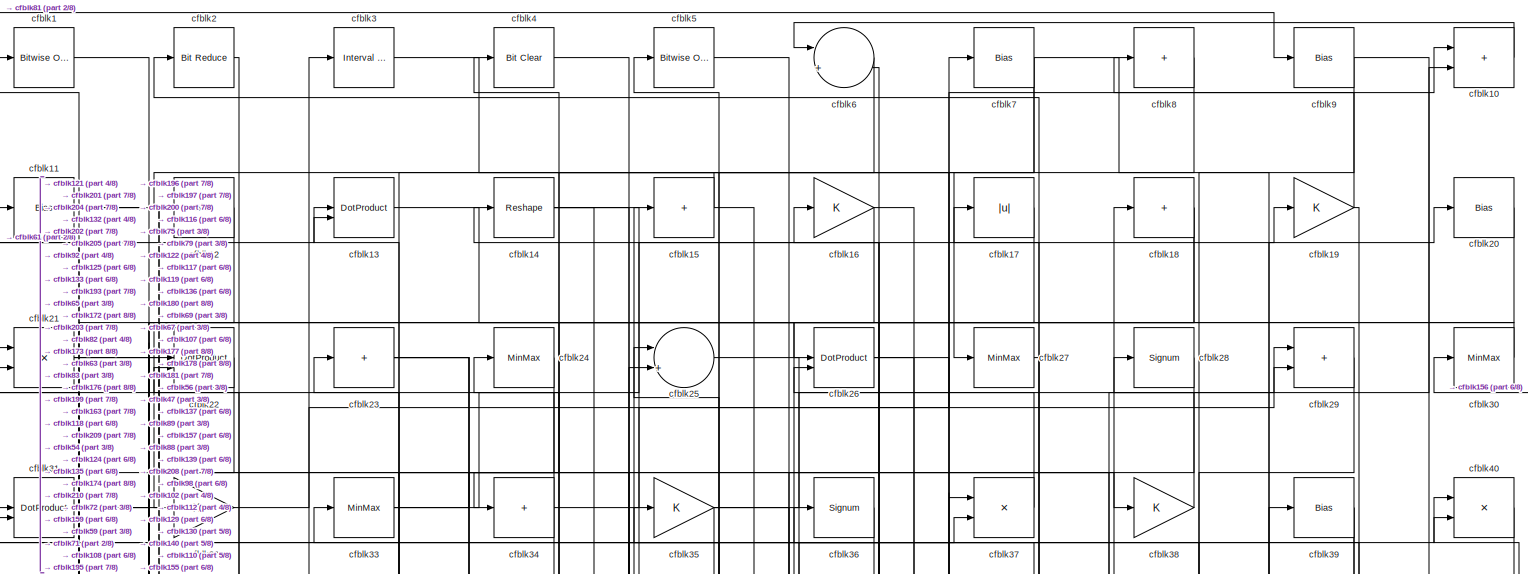
[diagram: root canvas - part 1/8, full width, top band]
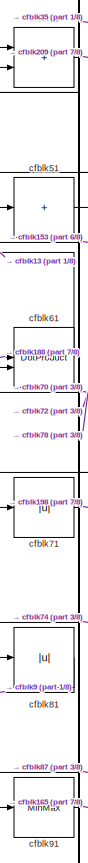
[diagram: root canvas - part 2/8, top left region]
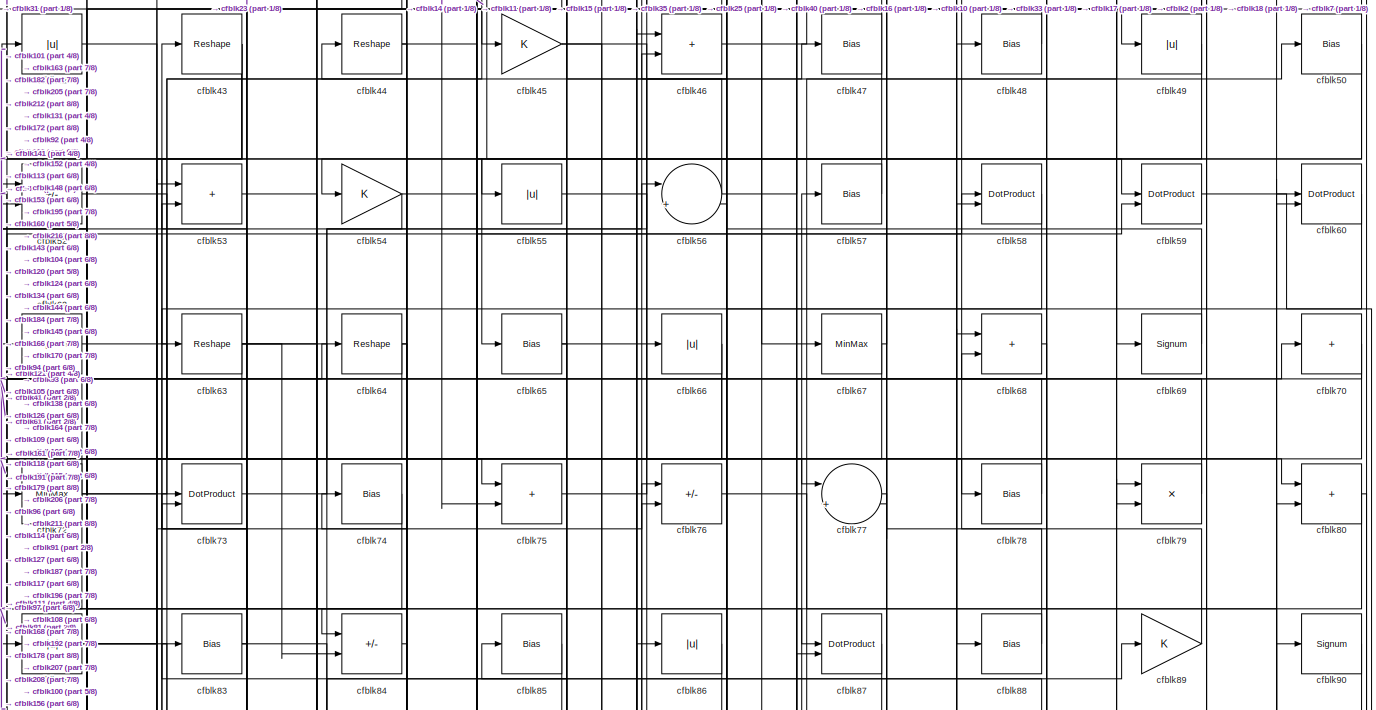
[diagram: root canvas - part 3/8, full width, top band]
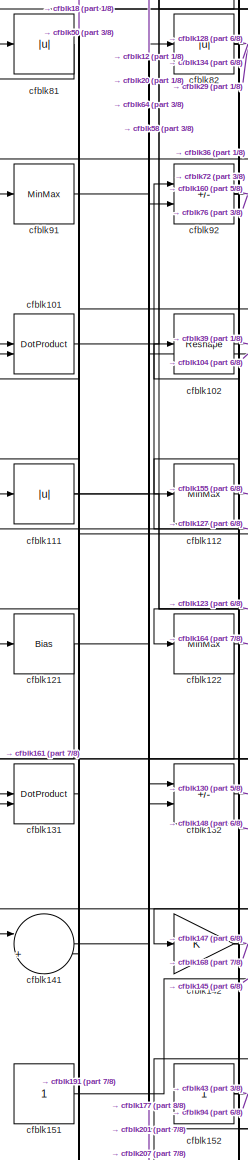
[diagram: root canvas - part 4/8, middle left region]
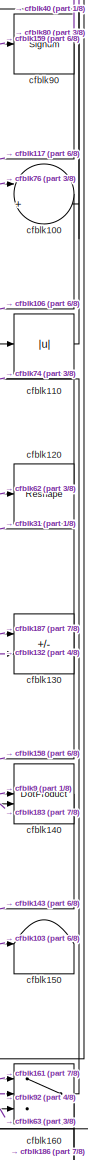
[diagram: root canvas - part 5/8, middle right region]
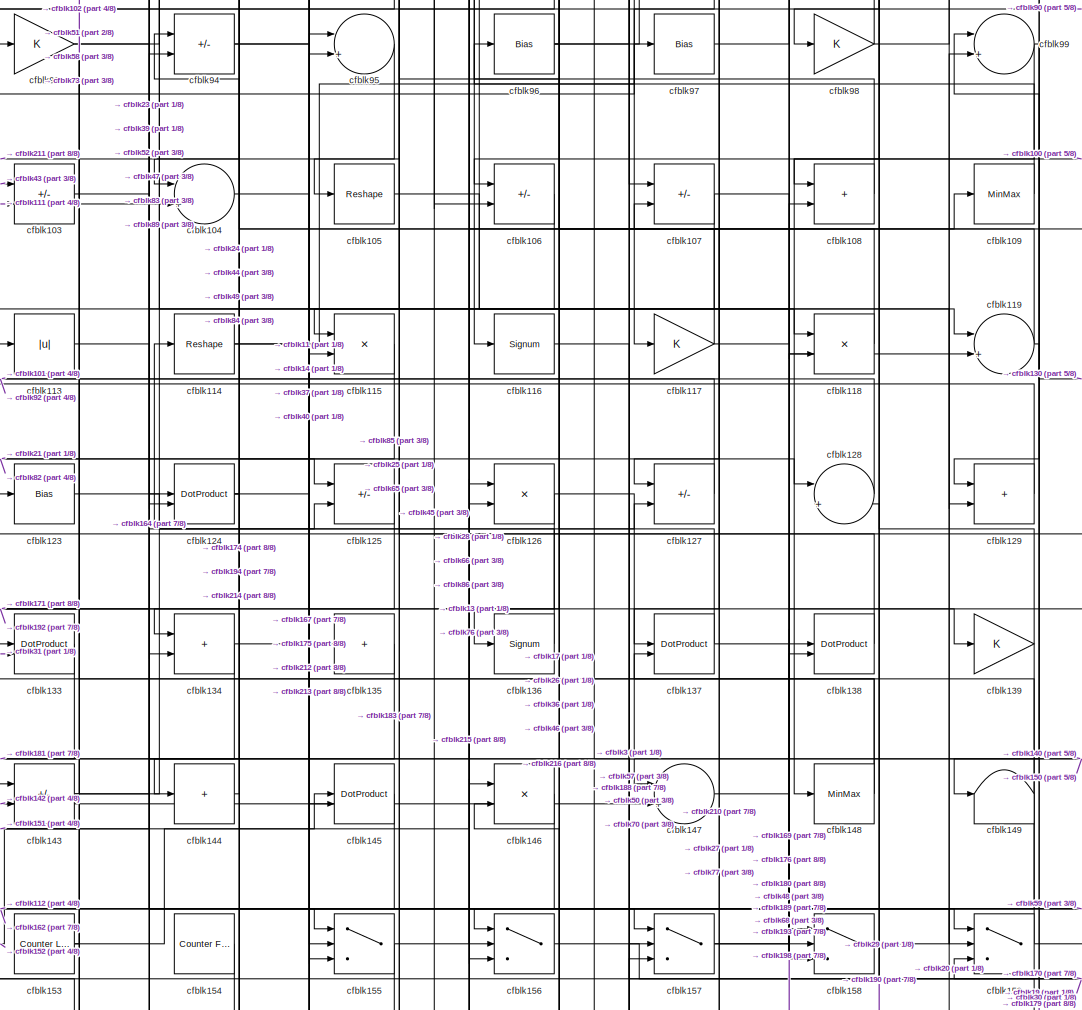
[diagram: root canvas - part 6/8, central region]
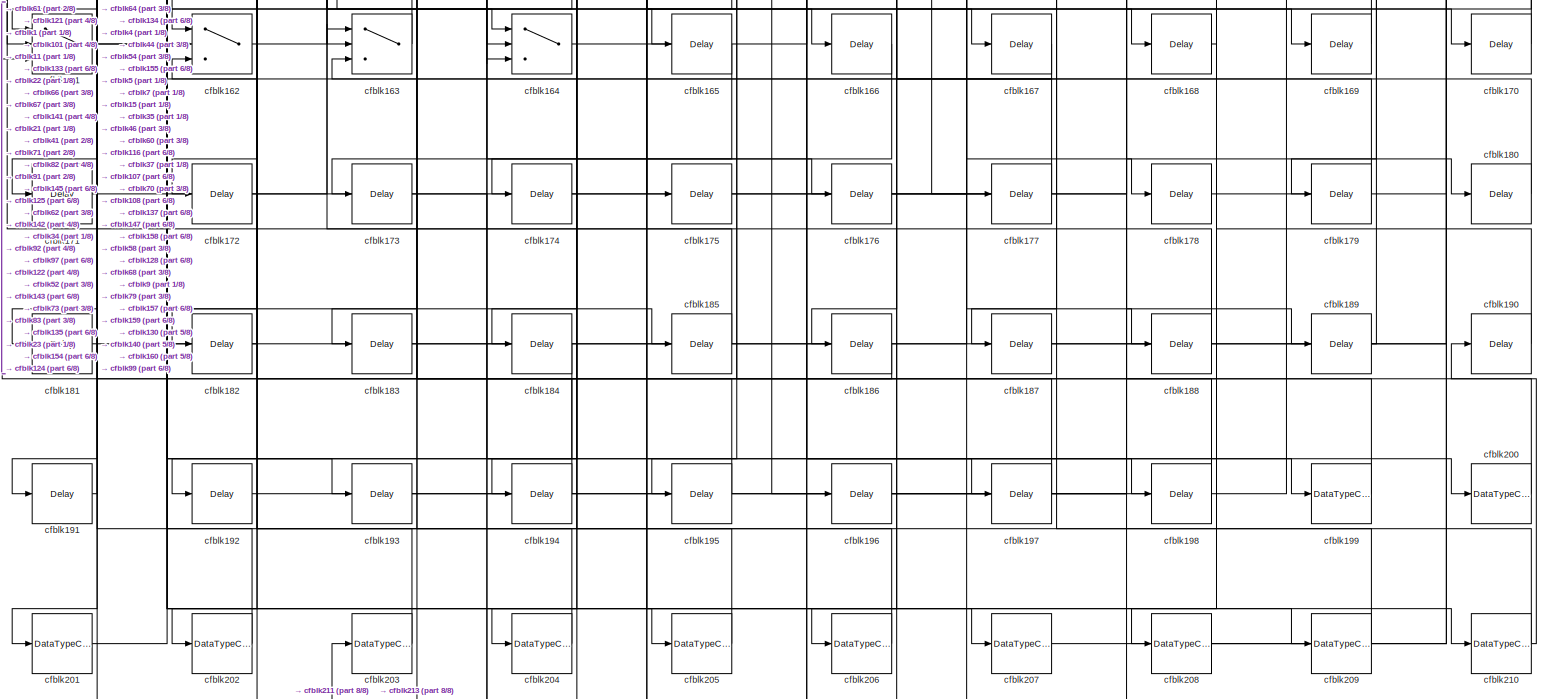
[diagram: root canvas - part 7/8, full width, bottom band]
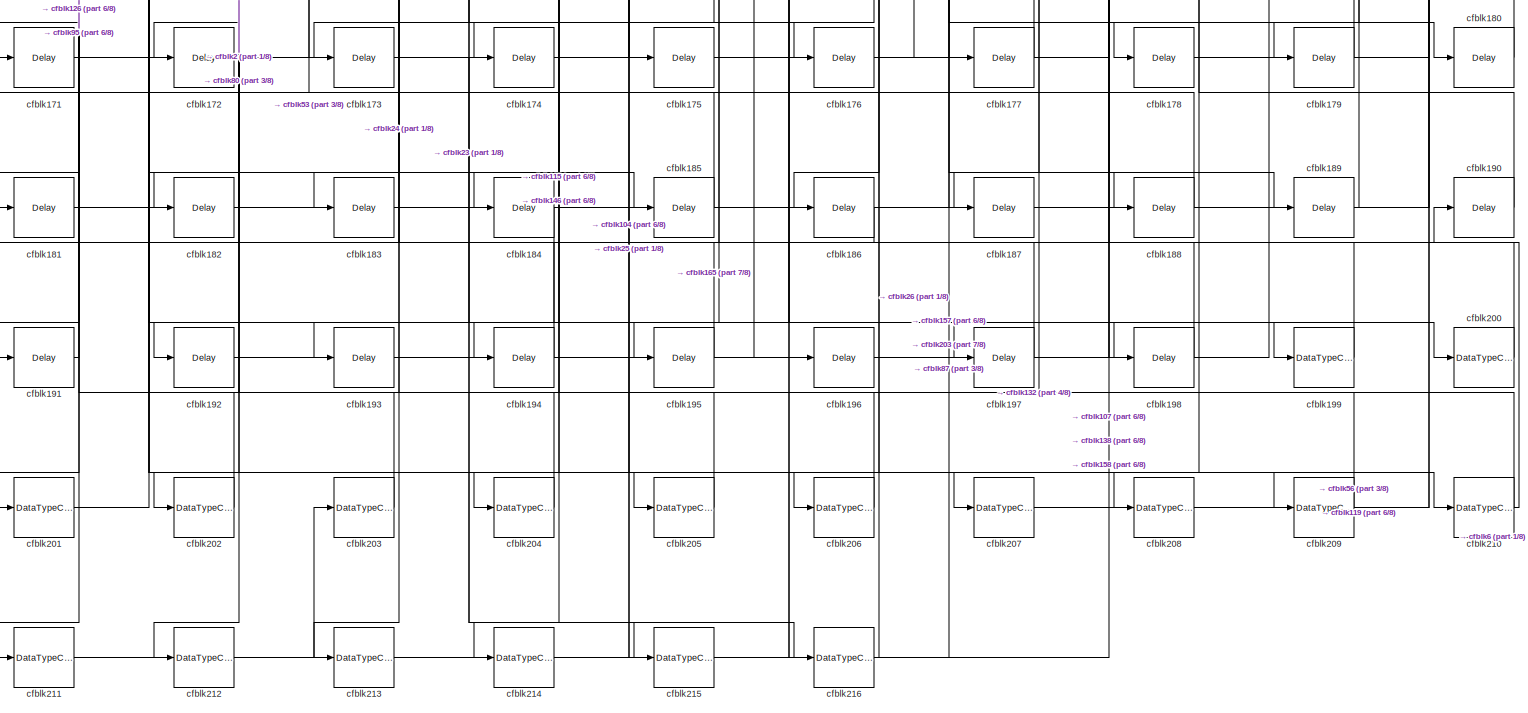
[diagram: root canvas - part 8/8, full width, bottom band]
MODEL slx_15d70a15c5ca
KIND model
CONFIG AbsTol = auto
CONFIG EnableMultiTasking = off
CONFIG FixedStep = auto
CONFIG MaxStep = auto
CONFIG MinStep = auto
CONFIG RelTol = 1e-3
CONFIG SampleTimeConstraint = Unconstrained
CONFIG SolverName = VariableStepAuto
CONFIG StartTime = 0.0
CONFIG StopTime = 10.0
BLOCK [Reference] cfblk1  REF=simulink/Logic and Bit
Operations/Bitwise
Operator
  LibrarySourceBlock = hdlsllib/Logic and Bit\nOperations/Bitwise\nOperator
  SourceBlock = simulink/Logic and Bit\nOperations/Bitwise\nOperator
  SourceType = Bitwise Operator
BLOCK [Sum] cfblk10
  IconShape = rectangular
BLOCK [Sum] cfblk100
  Inputs = |++
BLOCK [DotProduct] cfblk101
  OutDataTypeStr = Inherit: Inherit via internal rule
BLOCK [Reshape] cfblk102
BLOCK [Sum] cfblk103
  IconShape = rectangular
  Inputs = +-
BLOCK [Sum] cfblk104
  Inputs = |++
BLOCK [Reshape] cfblk105
BLOCK [Sum] cfblk106
  IconShape = rectangular
  Inputs = +-
BLOCK [Sum] cfblk107
  IconShape = rectangular
  Inputs = +-
BLOCK [Sum] cfblk108
  IconShape = rectangular
BLOCK [MinMax] cfblk109
BLOCK [Bias] cfblk11
  Bias = 0.0
  SaturateOnIntegerOverflow = off
BLOCK [Abs] cfblk110
  SaturateOnIntegerOverflow = off
BLOCK [Abs] cfblk111
  SaturateOnIntegerOverflow = off
BLOCK [MinMax] cfblk112
BLOCK [Abs] cfblk113
  SaturateOnIntegerOverflow = off
BLOCK [Reshape] cfblk114
BLOCK [Product] cfblk115
  Inputs = */
  RndMeth = Zero
  SaturateOnIntegerOverflow = on
BLOCK [Signum] cfblk116
BLOCK [Gain] cfblk117
BLOCK [Product] cfblk118
  Inputs = */
  RndMeth = Zero
  SaturateOnIntegerOverflow = on
BLOCK [Sum] cfblk119
  Inputs = |++
BLOCK [Bias] cfblk12
  Bias = 0.0
  SaturateOnIntegerOverflow = off
BLOCK [Reshape] cfblk120
BLOCK [Bias] cfblk121
  Bias = 0.0
  SaturateOnIntegerOverflow = off
BLOCK [MinMax] cfblk122
BLOCK [Bias] cfblk123
  Bias = 0.0
  SaturateOnIntegerOverflow = off
BLOCK [DotProduct] cfblk124
  OutDataTypeStr = Inherit: Inherit via internal rule
BLOCK [Sum] cfblk125
  IconShape = rectangular
  Inputs = +-
BLOCK [Product] cfblk126
  Inputs = */
  RndMeth = Zero
  SaturateOnIntegerOverflow = on
BLOCK [Sum] cfblk127
  IconShape = rectangular
  Inputs = +-
BLOCK [Sum] cfblk128
  Inputs = |++
BLOCK [Sum] cfblk129
  IconShape = rectangular
BLOCK [DotProduct] cfblk13
  OutDataTypeStr = Inherit: Inherit via internal rule
BLOCK [Sum] cfblk130
  IconShape = rectangular
  Inputs = +-
BLOCK [DotProduct] cfblk131
  OutDataTypeStr = Inherit: Inherit via internal rule
BLOCK [Sum] cfblk132
  IconShape = rectangular
  Inputs = +-
BLOCK [DotProduct] cfblk133
  OutDataTypeStr = Inherit: Inherit via internal rule
BLOCK [Sum] cfblk134
  IconShape = rectangular
BLOCK [Sum] cfblk135
  IconShape = rectangular
  Inputs = +
BLOCK [Signum] cfblk136
BLOCK [DotProduct] cfblk137
  OutDataTypeStr = Inherit: Inherit via internal rule
BLOCK [DotProduct] cfblk138
  OutDataTypeStr = Inherit: Inherit via internal rule
BLOCK [Gain] cfblk139
BLOCK [Reshape] cfblk14
BLOCK [DotProduct] cfblk140
  OutDataTypeStr = Inherit: Inherit via internal rule
BLOCK [Sum] cfblk141
  Inputs = |++
BLOCK [Gain] cfblk142
BLOCK [Sum] cfblk143
  IconShape = rectangular
  Inputs = +-
BLOCK [Sum] cfblk144
  IconShape = rectangular
  Inputs = +
BLOCK [DotProduct] cfblk145
  OutDataTypeStr = Inherit: Inherit via internal rule
BLOCK [Product] cfblk146
  Inputs = */
  RndMeth = Zero
  SaturateOnIntegerOverflow = on
BLOCK [Sum] cfblk147
  Inputs = |++
BLOCK [MinMax] cfblk148
BLOCK [Terminator] cfblk149
BLOCK [Sum] cfblk15
  IconShape = rectangular
  Inputs = +
BLOCK [Terminator] cfblk150
BLOCK [Constant] cfblk151
  SampleTime = -1
BLOCK [Constant] cfblk152
  SampleTime = -1
BLOCK [Reference] cfblk153  REF=hdlsllib/Sources/Counter
Limited
  SourceBlock = hdlsllib/Sources/Counter\nLimited
  SourceType = Counter Limited
BLOCK [Reference] cfblk154  REF=hdlsllib/Sources/Counter
Free-Running
  SourceBlock = hdlsllib/Sources/Counter\nFree-Running
  SourceType = Counter Free-Running
BLOCK [Switch] cfblk155
  InputSameDT = off
  SaturateOnIntegerOverflow = off
BLOCK [Switch] cfblk156
  InputSameDT = off
  SaturateOnIntegerOverflow = off
BLOCK [Switch] cfblk157
  InputSameDT = off
  SaturateOnIntegerOverflow = off
BLOCK [Switch] cfblk158
  InputSameDT = off
  SaturateOnIntegerOverflow = off
BLOCK [Switch] cfblk159
  InputSameDT = off
  SaturateOnIntegerOverflow = off
BLOCK [Gain] cfblk16
BLOCK [Switch] cfblk160
  InputSameDT = off
  SaturateOnIntegerOverflow = off
BLOCK [Switch] cfblk161
  InputSameDT = off
  SaturateOnIntegerOverflow = off
BLOCK [Switch] cfblk162
  InputSameDT = off
  SaturateOnIntegerOverflow = off
BLOCK [Switch] cfblk163
  InputSameDT = off
  SaturateOnIntegerOverflow = off
BLOCK [Switch] cfblk164
  InputSameDT = off
  SaturateOnIntegerOverflow = off
BLOCK [Delay] cfblk165
  InputPortMap = u0
  SampleTime = 1
BLOCK [Delay] cfblk166
  InputPortMap = u0
  SampleTime = 1
BLOCK [Delay] cfblk167
  InputPortMap = u0
  SampleTime = 1
BLOCK [Delay] cfblk168
  InputPortMap = u0
  SampleTime = 1
BLOCK [Delay] cfblk169
  InputPortMap = u0
  SampleTime = 1
BLOCK [Abs] cfblk17
  SaturateOnIntegerOverflow = off
BLOCK [Delay] cfblk170
  InputPortMap = u0
  SampleTime = 1
BLOCK [Delay] cfblk171
  InputPortMap = u0
  SampleTime = 1
BLOCK [Delay] cfblk172
  InputPortMap = u0
  SampleTime = 1
BLOCK [Delay] cfblk173
  InputPortMap = u0
  SampleTime = 1
BLOCK [Delay] cfblk174
  InputPortMap = u0
  SampleTime = 1
BLOCK [Delay] cfblk175
  InputPortMap = u0
  SampleTime = 1
BLOCK [Delay] cfblk176
  InputPortMap = u0
  SampleTime = 1
BLOCK [Delay] cfblk177
  InputPortMap = u0
  SampleTime = 1
BLOCK [Delay] cfblk178
  InputPortMap = u0
  SampleTime = 1
BLOCK [Delay] cfblk179
  InputPortMap = u0
  SampleTime = 1
BLOCK [Sum] cfblk18
  IconShape = rectangular
  Inputs = +
BLOCK [Delay] cfblk180
  InputPortMap = u0
  SampleTime = 1
BLOCK [Delay] cfblk181
  InputPortMap = u0
  SampleTime = 1
BLOCK [Delay] cfblk182
  InputPortMap = u0
  SampleTime = 1
BLOCK [Delay] cfblk183
  InputPortMap = u0
  SampleTime = 1
BLOCK [Delay] cfblk184
  InputPortMap = u0
  SampleTime = 1
BLOCK [Delay] cfblk185
  InputPortMap = u0
  SampleTime = 1
BLOCK [Delay] cfblk186
  InputPortMap = u0
  SampleTime = 1
BLOCK [Delay] cfblk187
  InputPortMap = u0
  SampleTime = 1
BLOCK [Delay] cfblk188
  InputPortMap = u0
  SampleTime = 1
BLOCK [Delay] cfblk189
  InputPortMap = u0
  SampleTime = 1
BLOCK [Gain] cfblk19
BLOCK [Delay] cfblk190
  InputPortMap = u0
  SampleTime = 1
BLOCK [Delay] cfblk191
  InputPortMap = u0
  SampleTime = 1
BLOCK [Delay] cfblk192
  InputPortMap = u0
  SampleTime = 1
BLOCK [Delay] cfblk193
  InputPortMap = u0
  SampleTime = 1
BLOCK [Delay] cfblk194
  InputPortMap = u0
  SampleTime = 1
BLOCK [Delay] cfblk195
  InputPortMap = u0
  SampleTime = 1
BLOCK [Delay] cfblk196
  InputPortMap = u0
  SampleTime = 1
BLOCK [Delay] cfblk197
  InputPortMap = u0
  SampleTime = 1
BLOCK [Delay] cfblk198
  InputPortMap = u0
  SampleTime = 1
BLOCK [DataTypeConversion] cfblk199
  OutDataTypeStr = boolean
  RndMeth = Floor
  SaturateOnIntegerOverflow = off
BLOCK [Reference] cfblk2  REF=hdlsllib/Logic and Bit
Operations/Bit Reduce
  SourceBlock = hdlsllib/Logic and Bit\nOperations/Bit Reduce
  SourceType = Bit Reduce
BLOCK [Bias] cfblk20
  Bias = 0.0
  SaturateOnIntegerOverflow = off
BLOCK [DataTypeConversion] cfblk200
  OutDataTypeStr = uint8
  RndMeth = Floor
  SaturateOnIntegerOverflow = off
BLOCK [DataTypeConversion] cfblk201
  OutDataTypeStr = uint8
  RndMeth = Floor
  SaturateOnIntegerOverflow = off
BLOCK [DataTypeConversion] cfblk202
  OutDataTypeStr = uint8
  RndMeth = Floor
  SaturateOnIntegerOverflow = off
BLOCK [DataTypeConversion] cfblk203
  OutDataTypeStr = uint8
  RndMeth = Floor
  SaturateOnIntegerOverflow = off
BLOCK [DataTypeConversion] cfblk204
  OutDataTypeStr = boolean
  RndMeth = Floor
  SaturateOnIntegerOverflow = off
BLOCK [DataTypeConversion] cfblk205
  OutDataTypeStr = uint8
  RndMeth = Floor
  SaturateOnIntegerOverflow = off
BLOCK [DataTypeConversion] cfblk206
  OutDataTypeStr = uint8
  RndMeth = Floor
  SaturateOnIntegerOverflow = off
BLOCK [DataTypeConversion] cfblk207
  OutDataTypeStr = uint8
  RndMeth = Floor
  SaturateOnIntegerOverflow = off
BLOCK [DataTypeConversion] cfblk208
  OutDataTypeStr = uint8
  RndMeth = Floor
  SaturateOnIntegerOverflow = off
BLOCK [DataTypeConversion] cfblk209
  OutDataTypeStr = boolean
  RndMeth = Floor
  SaturateOnIntegerOverflow = off
BLOCK [Product] cfblk21
  Inputs = */
  RndMeth = Zero
  SaturateOnIntegerOverflow = on
BLOCK [DataTypeConversion] cfblk210
  RndMeth = Floor
  SaturateOnIntegerOverflow = off
BLOCK [DataTypeConversion] cfblk211
  RndMeth = Floor
  SaturateOnIntegerOverflow = off
BLOCK [DataTypeConversion] cfblk212
  OutDataTypeStr = uint8
  RndMeth = Floor
  SaturateOnIntegerOverflow = off
BLOCK [DataTypeConversion] cfblk213
  OutDataTypeStr = uint8
  RndMeth = Floor
  SaturateOnIntegerOverflow = off
BLOCK [DataTypeConversion] cfblk214
  RndMeth = Floor
  SaturateOnIntegerOverflow = off
BLOCK [DataTypeConversion] cfblk215
  OutDataTypeStr = uint8
  RndMeth = Floor
  SaturateOnIntegerOverflow = off
BLOCK [DataTypeConversion] cfblk216
  OutDataTypeStr = uint8
  RndMeth = Floor
  SaturateOnIntegerOverflow = off
BLOCK [DotProduct] cfblk22
  OutDataTypeStr = Inherit: Inherit via internal rule
BLOCK [Sum] cfblk23
  IconShape = rectangular
  Inputs = +
BLOCK [MinMax] cfblk24
BLOCK [Sum] cfblk25
  Inputs = |++
BLOCK [DotProduct] cfblk26
  OutDataTypeStr = Inherit: Inherit via internal rule
BLOCK [MinMax] cfblk27
BLOCK [Signum] cfblk28
BLOCK [Sum] cfblk29
  IconShape = rectangular
BLOCK [Reference] cfblk3  REF=hdlsllib/Logic and Bit
Operations/Interval Test
  SourceBlock = hdlsllib/Logic and Bit\nOperations/Interval Test
  SourceType = Interval Test
BLOCK [MinMax] cfblk30
BLOCK [DotProduct] cfblk31
  OutDataTypeStr = Inherit: Inherit via internal rule
BLOCK [Gain] cfblk32
BLOCK [MinMax] cfblk33
BLOCK [Sum] cfblk34
  IconShape = rectangular
  Inputs = +
BLOCK [Gain] cfblk35
BLOCK [Signum] cfblk36
BLOCK [Product] cfblk37
  Inputs = */
  RndMeth = Zero
  SaturateOnIntegerOverflow = on
BLOCK [Gain] cfblk38
BLOCK [Bias] cfblk39
  Bias = 0.0
  SaturateOnIntegerOverflow = off
BLOCK [Reference] cfblk4  REF=simulink/Logic and Bit
Operations/Bit Clear
  LibrarySourceBlock = hdlsllib/Logic and Bit\nOperations/Bit Clear
  SourceBlock = simulink/Logic and Bit\nOperations/Bit Clear
  SourceType = Bit Clear
BLOCK [Product] cfblk40
  Inputs = */
  RndMeth = Zero
  SaturateOnIntegerOverflow = on
BLOCK [Sum] cfblk41
  IconShape = rectangular
BLOCK [Abs] cfblk42
  SaturateOnIntegerOverflow = off
BLOCK [Reshape] cfblk43
BLOCK [Reshape] cfblk44
BLOCK [Gain] cfblk45
BLOCK [Sum] cfblk46
  IconShape = rectangular
BLOCK [Bias] cfblk47
  Bias = 0.0
  SaturateOnIntegerOverflow = off
BLOCK [Bias] cfblk48
  Bias = 0.0
  SaturateOnIntegerOverflow = off
BLOCK [Abs] cfblk49
  SaturateOnIntegerOverflow = off
BLOCK [Reference] cfblk5  REF=simulink/Logic and Bit
Operations/Bitwise
Operator
  LibrarySourceBlock = hdlsllib/Logic and Bit\nOperations/Bitwise\nOperator
  SourceBlock = simulink/Logic and Bit\nOperations/Bitwise\nOperator
  SourceType = Bitwise Operator
BLOCK [Bias] cfblk50
  Bias = 0.0
  SaturateOnIntegerOverflow = off
BLOCK [Sum] cfblk51
  IconShape = rectangular
  Inputs = +
BLOCK [Sum] cfblk52
  IconShape = rectangular
  Inputs = +-
BLOCK [Sum] cfblk53
  IconShape = rectangular
BLOCK [Gain] cfblk54
BLOCK [Abs] cfblk55
  SaturateOnIntegerOverflow = off
BLOCK [Sum] cfblk56
  Inputs = |++
BLOCK [Bias] cfblk57
  Bias = 0.0
  SaturateOnIntegerOverflow = off
BLOCK [DotProduct] cfblk58
  OutDataTypeStr = Inherit: Inherit via internal rule
BLOCK [DotProduct] cfblk59
  OutDataTypeStr = Inherit: Inherit via internal rule
BLOCK [Sum] cfblk6
  Inputs = |++
BLOCK [DotProduct] cfblk60
  OutDataTypeStr = Inherit: Inherit via internal rule
BLOCK [DotProduct] cfblk61
  OutDataTypeStr = Inherit: Inherit via internal rule
BLOCK [Signum] cfblk62
BLOCK [Reshape] cfblk63
BLOCK [Reshape] cfblk64
BLOCK [Bias] cfblk65
  Bias = 0.0
  SaturateOnIntegerOverflow = off
BLOCK [Abs] cfblk66
  SaturateOnIntegerOverflow = off
BLOCK [MinMax] cfblk67
BLOCK [Sum] cfblk68
  IconShape = rectangular
BLOCK [Signum] cfblk69
BLOCK [Bias] cfblk7
  Bias = 0.0
  SaturateOnIntegerOverflow = off
BLOCK [Sum] cfblk70
  IconShape = rectangular
  Inputs = +
BLOCK [Abs] cfblk71
  SaturateOnIntegerOverflow = off
BLOCK [MinMax] cfblk72
BLOCK [DotProduct] cfblk73
  OutDataTypeStr = Inherit: Inherit via internal rule
BLOCK [Bias] cfblk74
  Bias = 0.0
  SaturateOnIntegerOverflow = off
BLOCK [Sum] cfblk75
  IconShape = rectangular
BLOCK [Sum] cfblk76
  IconShape = rectangular
  Inputs = +-
BLOCK [Sum] cfblk77
  Inputs = |++
BLOCK [Bias] cfblk78
  Bias = 0.0
  SaturateOnIntegerOverflow = off
BLOCK [Product] cfblk79
  Inputs = */
  RndMeth = Zero
  SaturateOnIntegerOverflow = on
BLOCK [Sum] cfblk8
  IconShape = rectangular
  Inputs = +
BLOCK [Sum] cfblk80
  IconShape = rectangular
BLOCK [Abs] cfblk81
  SaturateOnIntegerOverflow = off
BLOCK [Abs] cfblk82
  SaturateOnIntegerOverflow = off
BLOCK [Bias] cfblk83
  Bias = 0.0
  SaturateOnIntegerOverflow = off
BLOCK [Sum] cfblk84
  IconShape = rectangular
  Inputs = +-
BLOCK [Bias] cfblk85
  Bias = 0.0
  SaturateOnIntegerOverflow = off
BLOCK [Abs] cfblk86
  SaturateOnIntegerOverflow = off
BLOCK [DotProduct] cfblk87
  OutDataTypeStr = Inherit: Inherit via internal rule
BLOCK [Bias] cfblk88
  Bias = 0.0
  SaturateOnIntegerOverflow = off
BLOCK [Gain] cfblk89
BLOCK [Bias] cfblk9
  Bias = 0.0
  SaturateOnIntegerOverflow = off
BLOCK [Signum] cfblk90
BLOCK [MinMax] cfblk91
BLOCK [Sum] cfblk92
  IconShape = rectangular
  Inputs = +-
BLOCK [Gain] cfblk93
BLOCK [Sum] cfblk94
  IconShape = rectangular
  Inputs = +-
BLOCK [Sum] cfblk95
  Inputs = |++
BLOCK [Bias] cfblk96
  Bias = 0.0
  SaturateOnIntegerOverflow = off
BLOCK [Bias] cfblk97
  Bias = 0.0
  SaturateOnIntegerOverflow = off
BLOCK [Gain] cfblk98
BLOCK [Sum] cfblk99
  Inputs = |++
LINE cfblk100:1 -> cfblk106:1
LINE cfblk101:1 -> cfblk58:1
LINE cfblk102:1 -> cfblk39:1
LINE cfblk103:1 -> cfblk150:1
LINE cfblk104:1 -> cfblk175:1
LINE cfblk105:1 -> cfblk129:2
LINE cfblk106:1 -> cfblk115:2
NET cfblk107:1 -> cfblk133:1, cfblk180:1
LINE cfblk108:1 -> cfblk25:1
LINE cfblk109:1 -> cfblk76:1
LINE cfblk10:1 -> cfblk6:1
LINE cfblk110:1 -> cfblk40:2
NET cfblk111:1 -> cfblk104:2, cfblk123:1
LINE cfblk112:1 -> cfblk155:1
LINE cfblk113:1 -> cfblk157:1
NET cfblk114:1 -> cfblk139:1, cfblk57:1
LINE cfblk115:1 -> cfblk174:1
LINE cfblk116:1 -> cfblk188:1
NET cfblk117:1 -> cfblk36:1, cfblk48:1
LINE cfblk118:1 -> cfblk24:1
NET cfblk119:1 -> cfblk179:1, cfblk26:2
NET cfblk11:1 -> cfblk135:1, cfblk88:1
LINE cfblk120:1 -> cfblk74:1
NET cfblk121:1 -> cfblk161:2, cfblk64:1
NET cfblk122:1 -> cfblk131:1, cfblk164:1
LINE cfblk123:1 -> cfblk125:2
NET cfblk124:1 -> cfblk194:1, cfblk37:2, cfblk44:1
LINE cfblk125:1 -> cfblk192:1
NET cfblk126:1 -> cfblk147:1, cfblk171:1
LINE cfblk127:1 -> cfblk92:1
LINE cfblk128:1 -> cfblk101:1
LINE cfblk129:1 -> cfblk21:1
LINE cfblk12:1 -> cfblk92:2
NET cfblk130:1 -> cfblk158:2, cfblk31:2
LINE cfblk131:1 -> cfblk141:2
LINE cfblk132:1 -> cfblk130:2
LINE cfblk133:1 -> cfblk181:1
NET cfblk134:1 -> cfblk142:1, cfblk167:1
LINE cfblk135:1 -> cfblk164:2
LINE cfblk136:1 -> cfblk114:1
NET cfblk137:1 -> cfblk189:1, cfblk96:1
LINE cfblk138:1 -> cfblk85:1
NET cfblk139:1 -> cfblk156:3, cfblk31:1
LINE cfblk13:1 -> cfblk116:1
LINE cfblk140:1 -> cfblk143:1
LINE cfblk141:1 -> cfblk207:1
NET cfblk142:1 -> cfblk147:2, cfblk168:1
NET cfblk143:1 -> cfblk127:2, cfblk47:1
LINE cfblk144:1 -> cfblk94:1
LINE cfblk145:1 -> cfblk162:1
LINE cfblk146:1 -> cfblk214:1
LINE cfblk147:1 -> cfblk169:1
NET cfblk148:1 -> cfblk102:1, cfblk73:1
NET cfblk14:1 -> cfblk159:2, cfblk59:1, cfblk75:2
LINE cfblk151:1 -> cfblk145:1
NET cfblk152:1 -> cfblk43:1, cfblk94:2
NET cfblk153:1 -> cfblk51:1, cfblk86:1
LINE cfblk154:1 -> cfblk162:2
NET cfblk155:1 -> cfblk109:1, cfblk183:1
LINE cfblk156:1 -> cfblk30:1
NET cfblk157:1 -> cfblk119:2, cfblk29:1
LINE cfblk158:1 -> cfblk99:2
NET cfblk159:1 -> cfblk137:2, cfblk90:1
NET cfblk15:1 -> cfblk12:1, cfblk196:1
NET cfblk160:1 -> cfblk110:1, cfblk186:1
NET cfblk161:1 -> cfblk160:1, cfblk185:1
LINE cfblk162:1 -> cfblk97:1
LINE cfblk163:1 -> cfblk52:1
LINE cfblk164:1 -> cfblk46:1
LINE cfblk165:1 -> cfblk213:1
LINE cfblk166:1 -> cfblk204:1
LINE cfblk167:1 -> cfblk163:3
LINE cfblk168:1 -> cfblk68:2
LINE cfblk169:1 -> cfblk157:2
NET cfblk16:1 -> cfblk54:1, cfblk67:1
LINE cfblk170:1 -> cfblk99:1
LINE cfblk171:1 -> cfblk158:3
LINE cfblk172:1 -> cfblk53:1
LINE cfblk173:1 -> cfblk215:1
LINE cfblk174:1 -> cfblk25:2
LINE cfblk175:1 -> cfblk157:3
LINE cfblk176:1 -> cfblk138:1
LINE cfblk177:1 -> cfblk132:1
LINE cfblk178:1 -> cfblk80:2
LINE cfblk179:1 -> cfblk56:2
LINE cfblk17:1 -> cfblk136:1
LINE cfblk180:1 -> cfblk6:2
LINE cfblk181:1 -> cfblk37:1
LINE cfblk182:1 -> cfblk52:2
LINE cfblk183:1 -> cfblk140:2
LINE cfblk184:1 -> cfblk202:1
LINE cfblk185:1 -> cfblk163:1
LINE cfblk186:1 -> cfblk161:3
LINE cfblk187:1 -> cfblk130:1
LINE cfblk188:1 -> cfblk61:1
LINE cfblk189:1 -> cfblk159:3
NET cfblk18:1 -> cfblk121:1, cfblk32:1
LINE cfblk190:1 -> cfblk128:2
LINE cfblk191:1 -> cfblk101:2
LINE cfblk192:1 -> cfblk79:1
LINE cfblk193:1 -> cfblk108:2
LINE cfblk194:1 -> cfblk143:2
LINE cfblk195:1 -> cfblk73:2
LINE cfblk196:1 -> cfblk58:2
LINE cfblk197:1 -> cfblk162:3
LINE cfblk198:1 -> cfblk158:1
LINE cfblk199:1 -> cfblk5:1
NET cfblk19:1 -> cfblk129:1, cfblk8:1
LINE cfblk1:1 -> cfblk205:1
LINE cfblk200:1 -> cfblk11:1
LINE cfblk201:1 -> cfblk82:1
LINE cfblk202:1 -> cfblk22:1
LINE cfblk203:1 -> cfblk22:2
LINE cfblk204:1 -> cfblk1:1
LINE cfblk205:1 -> cfblk62:1
LINE cfblk206:1 -> cfblk83:1
LINE cfblk207:1 -> cfblk60:1
LINE cfblk208:1 -> cfblk60:2
LINE cfblk209:1 -> cfblk4:1
LINE cfblk20:1 -> cfblk132:2
NET cfblk210:1 -> cfblk107:2, cfblk190:1
NET cfblk211:1 -> cfblk203:1, cfblk87:2
LINE cfblk212:1 -> cfblk95:1
LINE cfblk213:1 -> cfblk95:2
NET cfblk214:1 -> cfblk126:1, cfblk138:2
LINE cfblk215:1 -> cfblk146:1
LINE cfblk216:1 -> cfblk146:2
NET cfblk21:1 -> cfblk125:1, cfblk193:1
LINE cfblk22:1 -> cfblk201:1
NET cfblk23:1 -> cfblk119:1, cfblk176:1, cfblk199:1
LINE cfblk24:1 -> cfblk173:1
LINE cfblk25:1 -> cfblk79:2
NET cfblk26:1 -> cfblk177:1, cfblk178:1
LINE cfblk27:1 -> cfblk137:1
LINE cfblk28:1 -> cfblk156:2
LINE cfblk29:1 -> cfblk98:1
LINE cfblk2:1 -> cfblk172:1
LINE cfblk30:1 -> cfblk26:1
NET cfblk31:1 -> cfblk133:2, cfblk65:1
LINE cfblk32:1 -> cfblk3:1
NET cfblk33:1 -> cfblk19:1, cfblk38:1
NET cfblk34:1 -> cfblk163:2, cfblk21:2, cfblk7:1
NET cfblk35:1 -> cfblk10:2, cfblk197:1, cfblk71:1
LINE cfblk36:1 -> cfblk122:1
LINE cfblk37:1 -> cfblk16:1
LINE cfblk38:1 -> cfblk28:1
NET cfblk39:1 -> cfblk112:1, cfblk124:2
LINE cfblk3:1 -> cfblk107:1
LINE cfblk40:1 -> cfblk155:2
LINE cfblk41:1 -> cfblk209:1
LINE cfblk42:1 -> cfblk80:1
NET cfblk43:1 -> cfblk103:1, cfblk103:2, cfblk131:2
NET cfblk44:1 -> cfblk134:1, cfblk166:1
NET cfblk45:1 -> cfblk106:2, cfblk118:1
LINE cfblk46:1 -> cfblk49:1
NET cfblk47:1 -> cfblk145:2, cfblk33:1
LINE cfblk48:1 -> cfblk45:1
LINE cfblk49:1 -> cfblk104:1
LINE cfblk4:1 -> cfblk210:1
NET cfblk50:1 -> cfblk141:1, cfblk77:2
LINE cfblk51:1 -> cfblk87:1
LINE cfblk52:1 -> cfblk124:1
LINE cfblk53:1 -> cfblk216:1
NET cfblk54:1 -> cfblk170:1, cfblk53:2
LINE cfblk55:1 -> cfblk78:1
NET cfblk56:1 -> cfblk10:1, cfblk35:1
LINE cfblk57:1 -> cfblk55:1
LINE cfblk58:1 -> cfblk113:1
LINE cfblk59:1 -> cfblk156:1
LINE cfblk5:1 -> cfblk200:1
LINE cfblk60:1 -> cfblk206:1
LINE cfblk61:1 -> cfblk13:1
LINE cfblk62:1 -> cfblk120:1
NET cfblk63:1 -> cfblk160:3, cfblk72:1, cfblk75:1, cfblk84:2
NET cfblk64:1 -> cfblk182:1, cfblk184:1, cfblk84:1
NET cfblk65:1 -> cfblk105:1, cfblk66:1
NET cfblk66:1 -> cfblk126:2, cfblk191:1
NET cfblk67:1 -> cfblk161:1, cfblk17:1
LINE cfblk68:1 -> cfblk108:1
LINE cfblk69:1 -> cfblk14:1
LINE cfblk6:1 -> cfblk34:1
NET cfblk70:1 -> cfblk187:1, cfblk61:2
LINE cfblk71:1 -> cfblk198:1
NET cfblk72:1 -> cfblk111:1, cfblk15:1, cfblk41:2, cfblk77:1
LINE cfblk73:1 -> cfblk56:1
LINE cfblk74:1 -> cfblk81:1
LINE cfblk75:1 -> cfblk40:1
LINE cfblk76:1 -> cfblk100:1
LINE cfblk77:1 -> cfblk127:1
LINE cfblk78:1 -> cfblk41:1
LINE cfblk79:1 -> cfblk42:1
NET cfblk7:1 -> cfblk195:1, cfblk63:1, cfblk69:1
NET cfblk80:1 -> cfblk100:2, cfblk212:1
LINE cfblk81:1 -> cfblk9:1
NET cfblk82:1 -> cfblk128:1, cfblk134:2, cfblk29:2
NET cfblk83:1 -> cfblk118:2, cfblk23:1
LINE cfblk84:1 -> cfblk144:1
LINE cfblk85:1 -> cfblk93:1
LINE cfblk86:1 -> cfblk115:1
LINE cfblk87:1 -> cfblk91:1
LINE cfblk88:1 -> cfblk18:1
LINE cfblk89:1 -> cfblk2:1
LINE cfblk8:1 -> cfblk27:1
LINE cfblk90:1 -> cfblk117:1
LINE cfblk91:1 -> cfblk165:1
NET cfblk92:1 -> cfblk160:2, cfblk164:3, cfblk76:2
NET cfblk93:1 -> cfblk159:1, cfblk89:1
NET cfblk94:1 -> cfblk155:3, cfblk59:2
LINE cfblk95:1 -> cfblk211:1
NET cfblk96:1 -> cfblk46:2, cfblk50:1, cfblk70:1
LINE cfblk97:1 -> cfblk68:1
NET cfblk98:1 -> cfblk13:2, cfblk20:1
NET cfblk99:1 -> cfblk148:1, cfblk149:1
NET cfblk9:1 -> cfblk140:1, cfblk208:1
note: NET lines group one-source signal fan-out (src -> all destinations, sorted); 1:1 wires keep LINE
